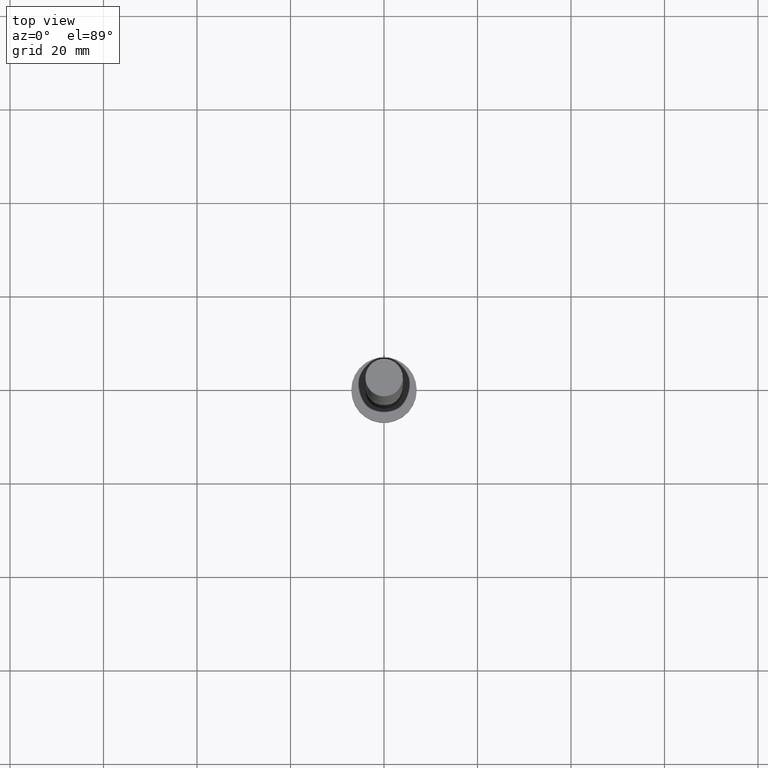
[diagram: clean part render]
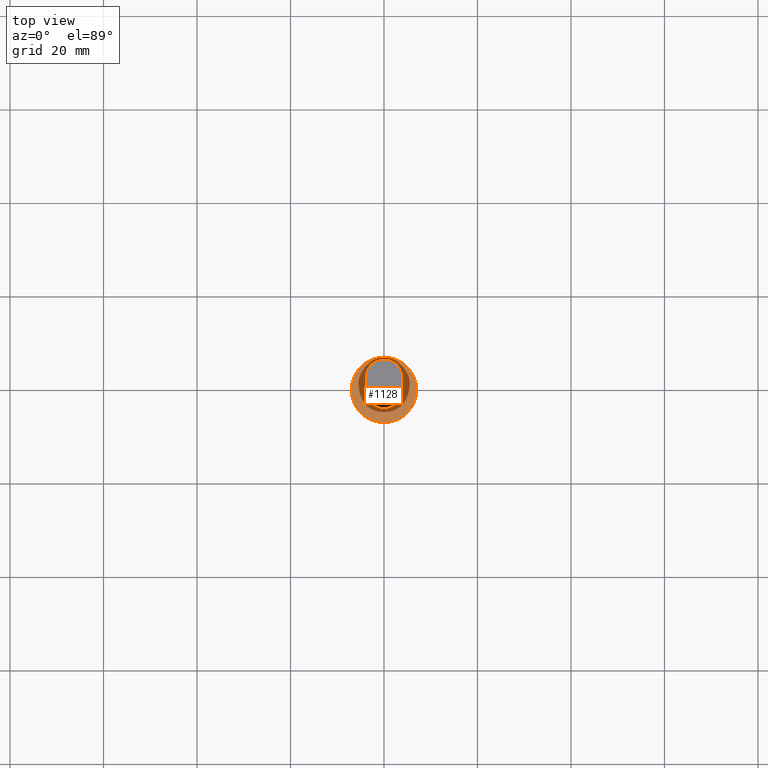
[diagram: same view with one face highlighted and labeled with its STEP entity id]
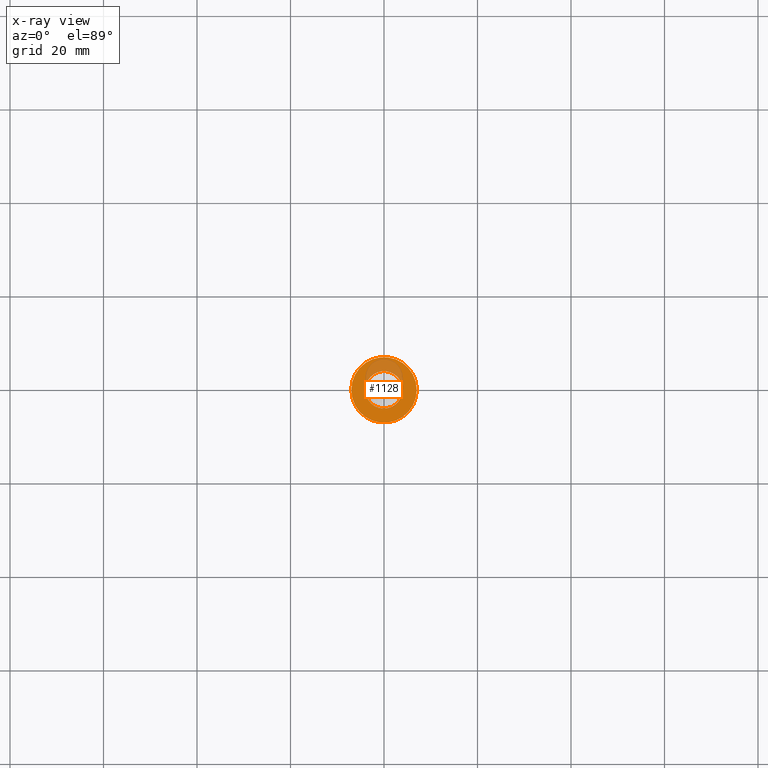
[diagram: x-ray of the same camera — body ghosted, the highlighted face saturated]
A machine part, top view. The second image highlights one B-rep face of the part: STEP entity #1128.
The next image is the same camera in x-ray: the body ghosted, the highlighted face saturated — about 20% of this face is hidden behind the body in this view.
In plain terms, the highlighted planar face has unit normal (0, 0, 1).
Its self-contained STEP definition (entity closure, byte-faithful):
#15 = CARTESIAN_POINT ( 'NONE',  ( 4.053380742667727077, 0.02100752175078306541, 4.999999999999993783 ) ) ;
#104 = ORIENTED_EDGE ( 'NONE', *, *, #1535, .T. ) ;
#125 = CIRCLE ( 'NONE', #799, 4.000000000000000000 ) ;
#135 = ORIENTED_EDGE ( 'NONE', *, *, #1107, .F. ) ;
#166 = DIRECTION ( 'NONE',  ( 1.000000000000000000, 0.000000000000000000, 0.000000000000000000 ) ) ;
#188 = CIRCLE ( 'NONE', #1745, 4.000000000000000000 ) ;
#279 = CARTESIAN_POINT ( 'NONE',  ( -4.000000000000000000, 0.000000000000000000, 5.000000000000000000 ) ) ;
#293 = VERTEX_POINT ( 'NONE', #279 ) ;
#315 = CARTESIAN_POINT ( 'NONE',  ( 3.745732573866698445, -1.549136613108617055, 4.999999999999993783 ) ) ;
#335 = EDGE_CURVE ( 'NONE', #1672, #930, #704, .T. ) ;
#361 = CARTESIAN_POINT ( 'NONE',  ( 3.999906161908477031, 0.02739883075335358686, 4.999999999999995559 ) ) ;
#409 = AXIS2_PLACEMENT_3D ( 'NONE', #1125, #1708, #944 ) ;
#430 = DIRECTION ( 'NONE',  ( 1.000000000000000000, 0.000000000000000000, 0.000000000000000000 ) ) ;
#450 = ORIENTED_EDGE ( 'NONE', *, *, #480, .T. ) ;
#480 = EDGE_CURVE ( 'NONE', #930, #1960, #572, .T. ) ;
#487 = FACE_OUTER_BOUND ( 'NONE', #1563, .T. ) ;
#504 = DIRECTION ( 'NONE',  ( 1.000000000000000000, 0.000000000000000000, 0.000000000000000000 ) ) ;
#572 =( BOUNDED_CURVE ( )  B_SPLINE_CURVE ( 1, ( #1036, #1641 ),
 .UNSPECIFIED., .F., .T. ) 
 B_SPLINE_CURVE_WITH_KNOTS ( ( 2, 2 ),
 ( 0.000000000000000000, 0.001600000000000000294 ),
 .UNSPECIFIED. ) 
 CURVE ( )  GEOMETRIC_REPRESENTATION_ITEM ( )  RATIONAL_B_SPLINE_CURVE ( ( 0.9970241722256998340, 0.9970241722256998340 ) ) 
 REPRESENTATION_ITEM ( '' )  );
#594 = VERTEX_POINT ( 'NONE', #1147 ) ;
#612 = ORIENTED_EDGE ( 'NONE', *, *, #1876, .T. ) ;
#648 = DIRECTION ( 'NONE',  ( 1.000000000000000000, 0.000000000000000000, -0.000000000000000000 ) ) ;
#668 = CARTESIAN_POINT ( 'NONE',  ( 0.000000000000000000, 0.000000000000000000, 5.000000000000000000 ) ) ;
#704 =( BOUNDED_CURVE ( )  B_SPLINE_CURVE ( 3, ( #1384, #1049, #15, #759 ),
 .UNSPECIFIED., .F., .T. ) 
 B_SPLINE_CURVE_WITH_KNOTS ( ( 4, 4 ),
 ( 0.002422213755310802935, 0.002501316663082367182 ),
 .UNSPECIFIED. ) 
 CURVE ( )  GEOMETRIC_REPRESENTATION_ITEM ( )  RATIONAL_B_SPLINE_CURVE ( ( 0.9063856111142123417, 0.9350840265242510441, 0.9652968802280802452, 0.9970241722256998340 ) ) 
 REPRESENTATION_ITEM ( '' )  );
#759 = CARTESIAN_POINT ( 'NONE',  ( 4.079184421549018502, 0.01595164542705009708, 4.999999999999911182 ) ) ;
#762 = EDGE_LOOP ( 'NONE', ( #450, #612, #135, #1612, #1182 ) ) ;
#799 = AXIS2_PLACEMENT_3D ( 'NONE', #1642, #1223, #430 ) ;
#822 =( BOUNDED_CURVE ( )  B_SPLINE_CURVE ( 3, ( #1689, #315, #1488, #1668 ),
 .UNSPECIFIED., .F., .T. ) 
 B_SPLINE_CURVE_WITH_KNOTS ( ( 4, 4 ),
 ( 4.848699518061080308E-19, 7.955406995602354943E-05 ),
 .UNSPECIFIED. ) 
 CURVE ( )  GEOMETRIC_REPRESENTATION_ITEM ( )  RATIONAL_B_SPLINE_CURVE ( ( 0.9970241722256998340, 0.9652968802280775806, 0.9350840265242459370, 0.9063856111142051253 ) ) 
 REPRESENTATION_ITEM ( '' )  );
#930 = VERTEX_POINT ( 'NONE', #1637 ) ;
#935 = CARTESIAN_POINT ( 'NONE',  ( 0.000000000000000000, 0.000000000000000000, 5.000000000000000000 ) ) ;
#944 = DIRECTION ( 'NONE',  ( 1.000000000000000000, 0.000000000000000000, 0.000000000000000000 ) ) ;
#993 = ORIENTED_EDGE ( 'NONE', *, *, #1671, .T. ) ;
#1036 = CARTESIAN_POINT ( 'NONE',  ( 4.079184421549018502, 0.01595164542705009708, 4.999999999999911182 ) ) ;
#1049 = CARTESIAN_POINT ( 'NONE',  ( 4.026931967287476155, 0.02486949961062510928, 4.999999999999994671 ) ) ;
#1107 = EDGE_CURVE ( 'NONE', #293, #594, #188, .T. ) ;
#1124 = DIRECTION ( 'NONE',  ( 0.000000000000000000, 0.000000000000000000, 1.000000000000000000 ) ) ;
#1125 = CARTESIAN_POINT ( 'NONE',  ( 0.000000000000000000, 0.000000000000000000, 5.000000000000000000 ) ) ;
#1128 = ADVANCED_FACE ( 'NONE', ( #487, #1404 ), #1270, .T. ) ;
#1147 = CARTESIAN_POINT ( 'NONE',  ( 3.693800098902596307, -1.534874857878381071, 5.000000000000006217 ) ) ;
#1182 = ORIENTED_EDGE ( 'NONE', *, *, #335, .T. ) ;
#1214 = CARTESIAN_POINT ( 'NONE',  ( 7.000000000000000000, 8.572527594031473190E-16, 5.000000000000000000 ) ) ;
#1223 = DIRECTION ( 'NONE',  ( 0.000000000000000000, 0.000000000000000000, 1.000000000000000000 ) ) ;
#1252 = AXIS2_PLACEMENT_3D ( 'NONE', #668, #1707, #648 ) ;
#1270 = PLANE ( 'NONE',  #1252 ) ;
#1271 = CARTESIAN_POINT ( 'NONE',  ( 0.000000000000000000, 0.000000000000000000, 5.000000000000000000 ) ) ;
#1354 = CIRCLE ( 'NONE', #409, 7.000000000000000000 ) ;
#1384 = CARTESIAN_POINT ( 'NONE',  ( 3.999906161908477031, 0.02739883075335358686, 4.999999999999994671 ) ) ;
#1404 = FACE_BOUND ( 'NONE', #762, .T. ) ;
#1411 = DIRECTION ( 'NONE',  ( 0.000000000000000000, 0.000000000000000000, 1.000000000000000000 ) ) ;
#1418 = CARTESIAN_POINT ( 'NONE',  ( -7.000000000000000000, 0.000000000000000000, 5.000000000000000000 ) ) ;
#1488 = CARTESIAN_POINT ( 'NONE',  ( 3.719782057631751737, -1.542731669764228375, 4.999999999999993783 ) ) ;
#1535 = EDGE_CURVE ( 'NONE', #1674, #1821, #1354, .T. ) ;
#1563 = EDGE_LOOP ( 'NONE', ( #104, #993 ) ) ;
#1594 = AXIS2_PLACEMENT_3D ( 'NONE', #1271, #1411, #504 ) ;
#1612 = ORIENTED_EDGE ( 'NONE', *, *, #1939, .F. ) ;
#1637 = CARTESIAN_POINT ( 'NONE',  ( 4.079184421549018502, 0.01595164542705009708, 4.999999999999911182 ) ) ;
#1641 = CARTESIAN_POINT ( 'NONE',  ( 3.771536252747994755, -1.554192489432259849, 5.000000000000007105 ) ) ;
#1642 = CARTESIAN_POINT ( 'NONE',  ( 0.000000000000000000, 0.000000000000000000, 5.000000000000000000 ) ) ;
#1660 = CIRCLE ( 'NONE', #1594, 7.000000000000000000 ) ;
#1668 = CARTESIAN_POINT ( 'NONE',  ( 3.693800098902596751, -1.534874857878381293, 5.000000000000006217 ) ) ;
#1671 = EDGE_CURVE ( 'NONE', #1821, #1674, #1660, .T. ) ;
#1672 = VERTEX_POINT ( 'NONE', #361 ) ;
#1674 = VERTEX_POINT ( 'NONE', #1418 ) ;
#1689 = CARTESIAN_POINT ( 'NONE',  ( 3.771536252747994755, -1.554192489432259849, 5.000000000000007105 ) ) ;
#1707 = DIRECTION ( 'NONE',  ( 0.000000000000000000, 0.000000000000000000, 1.000000000000000000 ) ) ;
#1708 = DIRECTION ( 'NONE',  ( 0.000000000000000000, 0.000000000000000000, 1.000000000000000000 ) ) ;
#1745 = AXIS2_PLACEMENT_3D ( 'NONE', #935, #1124, #166 ) ;
#1821 = VERTEX_POINT ( 'NONE', #1214 ) ;
#1876 = EDGE_CURVE ( 'NONE', #1960, #594, #822, .T. ) ;
#1916 = CARTESIAN_POINT ( 'NONE',  ( 3.771536252747994755, -1.554192489432259849, 5.000000000000007105 ) ) ;
#1939 = EDGE_CURVE ( 'NONE', #1672, #293, #125, .T. ) ;
#1960 = VERTEX_POINT ( 'NONE', #1916 ) ;